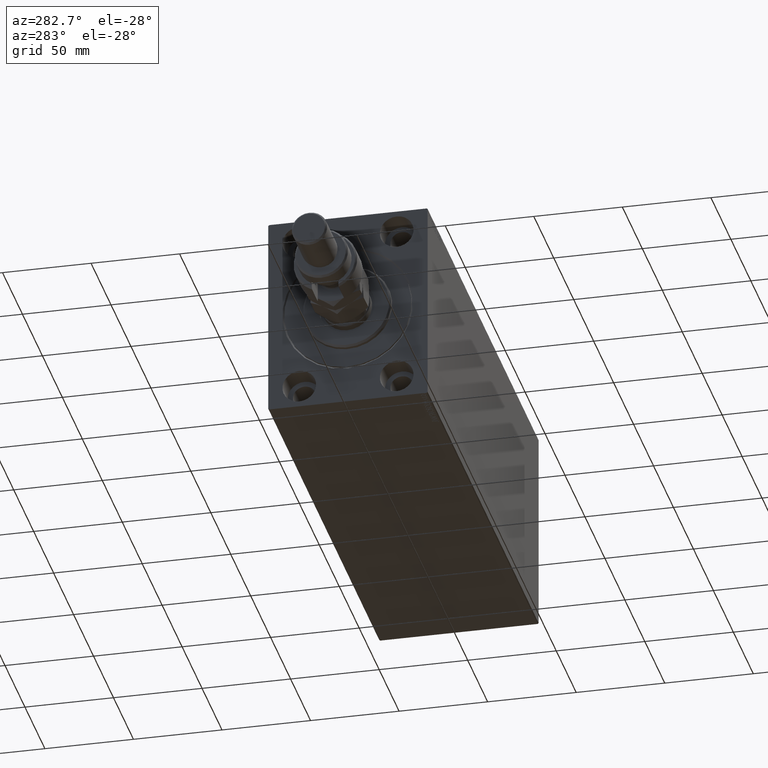
[diagram: clean part render]
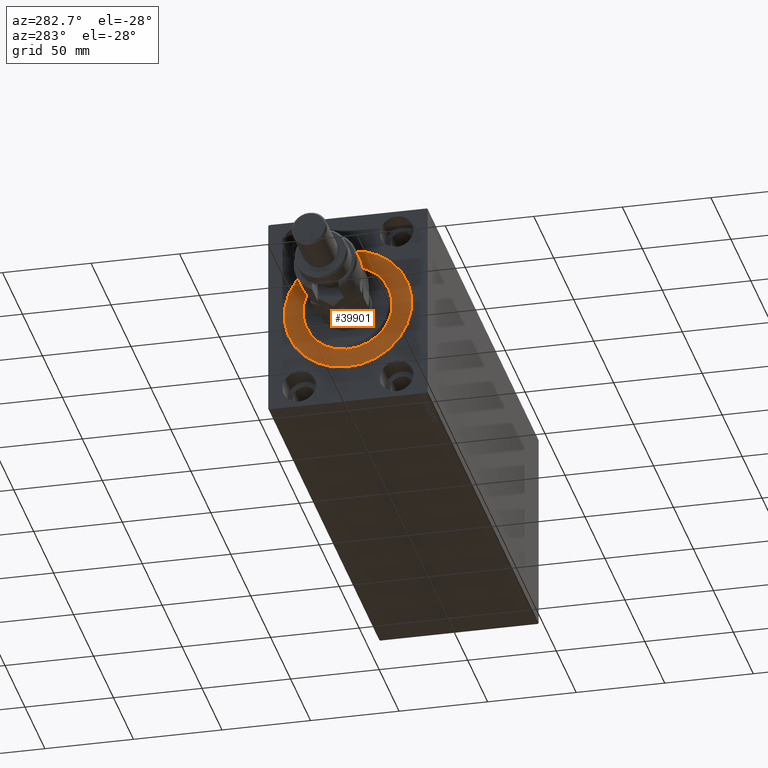
[diagram: same view with one face highlighted and labeled with its STEP entity id]
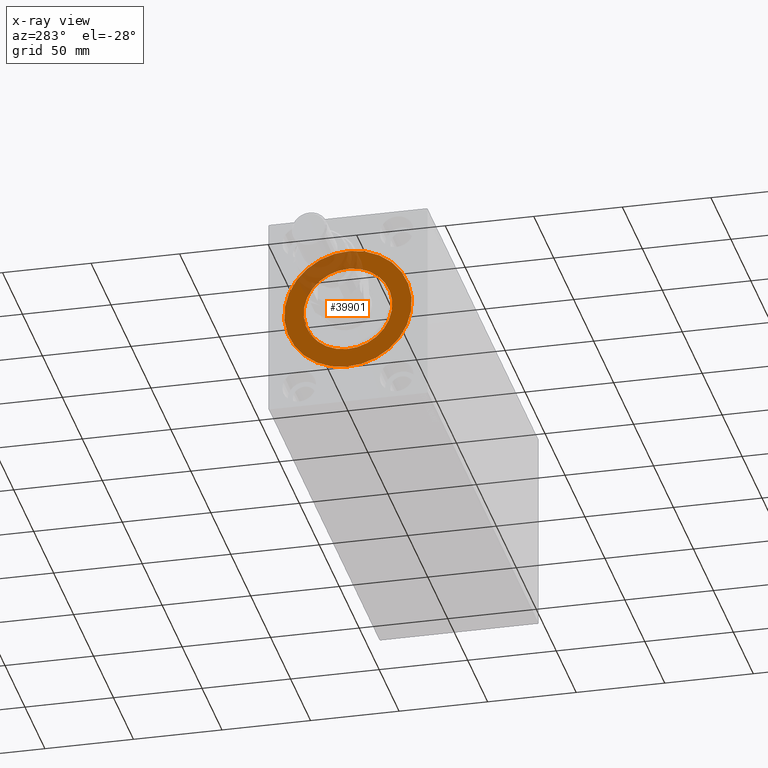
[diagram: x-ray of the same camera — body ghosted, the highlighted face saturated]
A machine part, auxiliary view. The second image highlights one B-rep face of the part: STEP entity #39901.
The next image is the same camera in x-ray: the body ghosted, the highlighted face saturated — about 20% of this face is hidden behind the body in this view.
In plain terms, the highlighted planar face has unit normal (1, 0, -0).
Its self-contained STEP definition (entity closure, byte-faithful):
#1738 = CIRCLE ( 'NONE', #14422, 25.00000000000000000 ) ;
#3310 = EDGE_CURVE ( 'NONE', #26667, #26729, #33323, .T. ) ;
#3910 = DIRECTION ( 'NONE',  ( -1.000000000000000000, 0.000000000000000000, 0.000000000000000000 ) ) ;
#4395 = CARTESIAN_POINT ( 'NONE',  ( 0.000000000000000000, 3.061616997868383043E-15, -25.00000000000000000 ) ) ;
#4805 = ORIENTED_EDGE ( 'NONE', *, *, #39048, .F. ) ;
#5208 = FACE_OUTER_BOUND ( 'NONE', #38430, .T. ) ;
#5671 = DIRECTION ( 'NONE',  ( 0.000000000000000000, 0.000000000000000000, 1.000000000000000000 ) ) ;
#7361 = EDGE_LOOP ( 'NONE', ( #19297, #32674 ) ) ;
#7590 = ORIENTED_EDGE ( 'NONE', *, *, #28571, .F. ) ;
#11438 = CIRCLE ( 'NONE', #30290, 36.00000000000000000 ) ;
#12193 = AXIS2_PLACEMENT_3D ( 'NONE', #45585, #42272, #13287 ) ;
#12752 = DIRECTION ( 'NONE',  ( 0.000000000000000000, 0.000000000000000000, 1.000000000000000000 ) ) ;
#13287 = DIRECTION ( 'NONE',  ( 0.000000000000000000, 0.000000000000000000, -1.000000000000000000 ) ) ;
#14422 = AXIS2_PLACEMENT_3D ( 'NONE', #33719, #16482, #20264 ) ;
#16482 = DIRECTION ( 'NONE',  ( 1.000000000000000000, -0.000000000000000000, 0.000000000000000000 ) ) ;
#16754 = PLANE ( 'NONE',  #25226 ) ;
#18340 = CARTESIAN_POINT ( 'NONE',  ( 0.000000000000000000, 0.000000000000000000, 25.00000000000000000 ) ) ;
#19297 = ORIENTED_EDGE ( 'NONE', *, *, #3310, .F. ) ;
#20161 = VERTEX_POINT ( 'NONE', #25875 ) ;
#20264 = DIRECTION ( 'NONE',  ( 0.000000000000000000, 0.000000000000000000, -1.000000000000000000 ) ) ;
#23150 = CARTESIAN_POINT ( 'NONE',  ( 0.000000000000000000, 0.000000000000000000, 0.000000000000000000 ) ) ;
#24041 = VERTEX_POINT ( 'NONE', #40325 ) ;
#25226 = AXIS2_PLACEMENT_3D ( 'NONE', #23150, #37514, #5671 ) ;
#25875 = CARTESIAN_POINT ( 'NONE',  ( 0.000000000000000000, 4.408728476930470856E-15, 36.00000000000000000 ) ) ;
#26667 = VERTEX_POINT ( 'NONE', #18340 ) ;
#26729 = VERTEX_POINT ( 'NONE', #4395 ) ;
#28571 = EDGE_CURVE ( 'NONE', #24041, #20161, #11438, .T. ) ;
#30290 = AXIS2_PLACEMENT_3D ( 'NONE', #43185, #33999, #12752 ) ;
#32532 = EDGE_CURVE ( 'NONE', #26729, #26667, #1738, .T. ) ;
#32674 = ORIENTED_EDGE ( 'NONE', *, *, #32532, .F. ) ;
#33323 = CIRCLE ( 'NONE', #12193, 25.00000000000000000 ) ;
#33719 = CARTESIAN_POINT ( 'NONE',  ( 0.000000000000000000, 0.000000000000000000, 0.000000000000000000 ) ) ;
#33999 = DIRECTION ( 'NONE',  ( -1.000000000000000000, 0.000000000000000000, 0.000000000000000000 ) ) ;
#35707 = AXIS2_PLACEMENT_3D ( 'NONE', #39765, #3910, #44417 ) ;
#37514 = DIRECTION ( 'NONE',  ( -1.000000000000000000, 0.000000000000000000, 0.000000000000000000 ) ) ;
#38430 = EDGE_LOOP ( 'NONE', ( #7590, #4805 ) ) ;
#39048 = EDGE_CURVE ( 'NONE', #20161, #24041, #39466, .T. ) ;
#39466 = CIRCLE ( 'NONE', #35707, 36.00000000000000000 ) ;
#39765 = CARTESIAN_POINT ( 'NONE',  ( 0.000000000000000000, 0.000000000000000000, 0.000000000000000000 ) ) ;
#39901 = ADVANCED_FACE ( 'NONE', ( #44596, #5208 ), #16754, .F. ) ;
#40325 = CARTESIAN_POINT ( 'NONE',  ( 0.000000000000000000, 0.000000000000000000, -36.00000000000000000 ) ) ;
#42272 = DIRECTION ( 'NONE',  ( 1.000000000000000000, -0.000000000000000000, 0.000000000000000000 ) ) ;
#43185 = CARTESIAN_POINT ( 'NONE',  ( 0.000000000000000000, 0.000000000000000000, 0.000000000000000000 ) ) ;
#44417 = DIRECTION ( 'NONE',  ( 0.000000000000000000, 0.000000000000000000, 1.000000000000000000 ) ) ;
#44596 = FACE_BOUND ( 'NONE', #7361, .T. ) ;
#45585 = CARTESIAN_POINT ( 'NONE',  ( 0.000000000000000000, 0.000000000000000000, 0.000000000000000000 ) ) ;